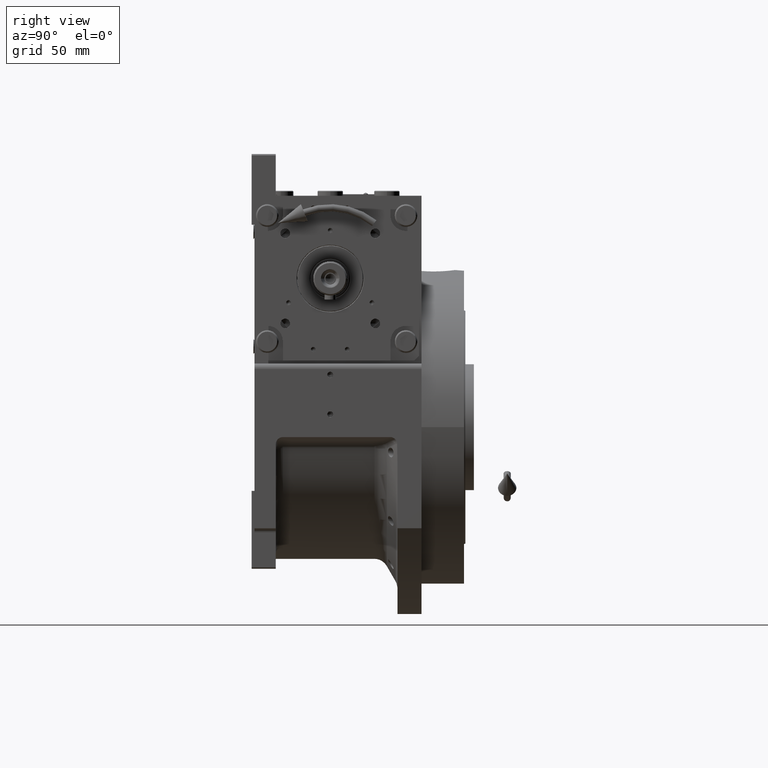
[diagram: clean part render]
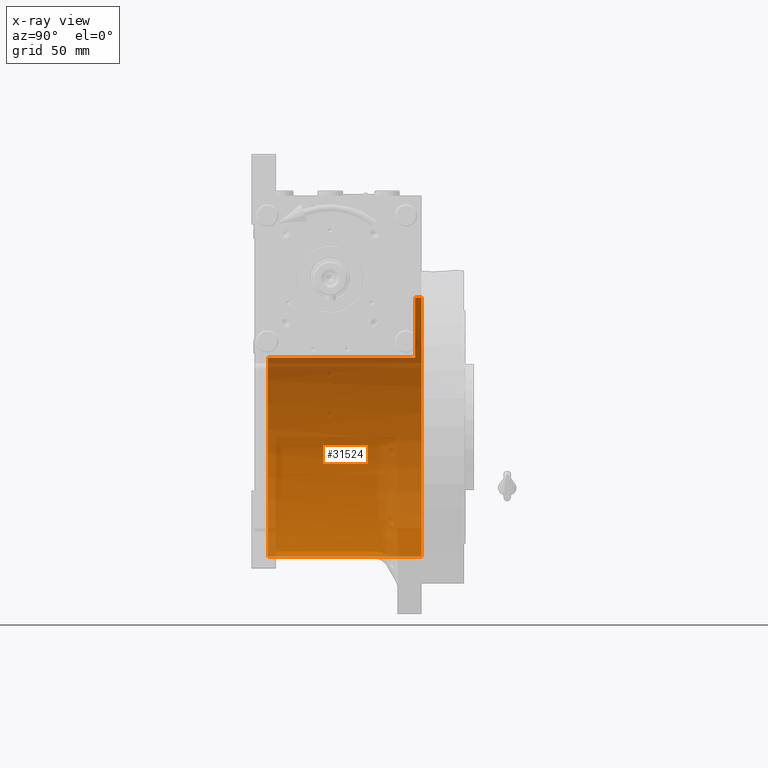
[diagram: x-ray — body ghosted, one internal face saturated and labeled with its STEP entity id]
A machine part, right view, then the same camera in x-ray: the body is ghosted and one INTERNAL B-rep face — a face not visible from any outside direction — is saturated and labeled: STEP entity #31524.
In plain terms, the highlighted cylindrical surface (partial cylindrical patch) has radius 91.5 mm, axis along (0, -1, 0).
Its self-contained STEP definition (entity closure, byte-faithful):
#271 = ORIENTED_EDGE ( 'NONE', *, *, #12407, .F. ) ;
#292 = DIRECTION ( 'NONE',  ( 0.000000000000000000, -1.000000000000000000, 0.000000000000000000 ) ) ;
#1716 = CARTESIAN_POINT ( 'NONE',  ( 0.000000000000000000, 64.50000000000000000, 0.000000000000000000 ) ) ;
#3368 = VECTOR ( 'NONE', #36680, 1000.000000000000000 ) ;
#3771 = VERTEX_POINT ( 'NONE', #60519 ) ;
#4141 = ORIENTED_EDGE ( 'NONE', *, *, #16725, .F. ) ;
#5579 = EDGE_LOOP ( 'NONE', ( #33754, #28616, #271, #32787, #4141, #35568 ) ) ;
#10593 = DIRECTION ( 'NONE',  ( 0.000000000000000000, 1.000000000000000000, 0.000000000000000000 ) ) ;
#11281 = CYLINDRICAL_SURFACE ( 'NONE', #17986, 91.50000000000000000 ) ;
#12050 = AXIS2_PLACEMENT_3D ( 'NONE', #49353, #65026, #29100 ) ;
#12407 = EDGE_CURVE ( 'NONE', #19535, #43215, #39945, .T. ) ;
#16725 = EDGE_CURVE ( 'NONE', #3771, #66391, #43805, .T. ) ;
#17523 = DIRECTION ( 'NONE',  ( 0.000000000000000000, 0.000000000000000000, -1.000000000000000000 ) ) ;
#17986 = AXIS2_PLACEMENT_3D ( 'NONE', #32893, #33587, #17523 ) ;
#19340 = CARTESIAN_POINT ( 'NONE',  ( -77.27386362800812947, 69.00000000000004263, 48.99999999999998579 ) ) ;
#19535 = VERTEX_POINT ( 'NONE', #20954 ) ;
#20880 = CARTESIAN_POINT ( 'NONE',  ( 1.120551821219827868E-14, 64.50000000000000000, 91.50000000000000000 ) ) ;
#20954 = CARTESIAN_POINT ( 'NONE',  ( -77.27386362800814368, 60.00000000000000000, 48.99999999999998579 ) ) ;
#23011 = DIRECTION ( 'NONE',  ( 0.000000000000000000, 0.000000000000000000, 1.000000000000000000 ) ) ;
#23570 = DIRECTION ( 'NONE',  ( -0.000000000000000000, 1.000000000000000000, -0.000000000000000000 ) ) ;
#25165 = LINE ( 'NONE', #31770, #3368 ) ;
#27522 = CARTESIAN_POINT ( 'NONE',  ( 1.120551821219827868E-14, 69.00000000000004263, 91.50000000000000000 ) ) ;
#27871 = CIRCLE ( 'NONE', #53512, 91.50000000000000000 ) ;
#28616 = ORIENTED_EDGE ( 'NONE', *, *, #68757, .T. ) ;
#29100 = DIRECTION ( 'NONE',  ( 1.776356839400250465E-15, 0.000000000000000000, -1.000000000000000000 ) ) ;
#29655 = EDGE_CURVE ( 'NONE', #66391, #19535, #40316, .T. ) ;
#30336 = EDGE_CURVE ( 'NONE', #40497, #50267, #27871, .T. ) ;
#31437 = VECTOR ( 'NONE', #292, 1000.000000000000000 ) ;
#31524 = ADVANCED_FACE ( 'NONE', ( #48612 ), #11281, .F. ) ;
#31770 = CARTESIAN_POINT ( 'NONE',  ( 0.000000000000000000, 69.00000000000004263, -91.50000000000000000 ) ) ;
#32787 = ORIENTED_EDGE ( 'NONE', *, *, #29655, .F. ) ;
#32893 = CARTESIAN_POINT ( 'NONE',  ( 0.000000000000000000, 69.00000000000004263, 0.000000000000000000 ) ) ;
#33587 = DIRECTION ( 'NONE',  ( 0.000000000000000000, -1.000000000000000000, 0.000000000000000000 ) ) ;
#33754 = ORIENTED_EDGE ( 'NONE', *, *, #30336, .F. ) ;
#35568 = ORIENTED_EDGE ( 'NONE', *, *, #64613, .F. ) ;
#36680 = DIRECTION ( 'NONE',  ( 0.000000000000000000, -1.000000000000000000, 0.000000000000000000 ) ) ;
#37102 = CARTESIAN_POINT ( 'NONE',  ( 0.000000000000000000, -44.00000000000000000, 0.000000000000000000 ) ) ;
#38704 = CARTESIAN_POINT ( 'NONE',  ( 1.120551821219827868E-14, 60.00000000000000000, 91.50000000000000000 ) ) ;
#39945 = CIRCLE ( 'NONE', #12050, 91.50000000000000000 ) ;
#40135 = CARTESIAN_POINT ( 'NONE',  ( -77.27386362800814368, -44.00000000000000000, 49.00000000000000000 ) ) ;
#40316 = LINE ( 'NONE', #19340, #57370 ) ;
#40487 = AXIS2_PLACEMENT_3D ( 'NONE', #37102, #10593, #62910 ) ;
#40497 = VERTEX_POINT ( 'NONE', #20880 ) ;
#43215 = VERTEX_POINT ( 'NONE', #38704 ) ;
#43805 = CIRCLE ( 'NONE', #40487, 91.50000000000000000 ) ;
#48612 = FACE_OUTER_BOUND ( 'NONE', #5579, .T. ) ;
#49353 = CARTESIAN_POINT ( 'NONE',  ( 0.000000000000000000, 60.00000000000000000, 0.000000000000000000 ) ) ;
#50267 = VERTEX_POINT ( 'NONE', #68845 ) ;
#53512 = AXIS2_PLACEMENT_3D ( 'NONE', #1716, #55103, #23011 ) ;
#55103 = DIRECTION ( 'NONE',  ( -0.000000000000000000, -1.000000000000000000, -0.000000000000000000 ) ) ;
#57370 = VECTOR ( 'NONE', #23570, 1000.000000000000000 ) ;
#60519 = CARTESIAN_POINT ( 'NONE',  ( 0.000000000000000000, -44.00000000000000000, -91.50000000000000000 ) ) ;
#62910 = DIRECTION ( 'NONE',  ( 0.000000000000000000, 0.000000000000000000, 1.000000000000000000 ) ) ;
#64613 = EDGE_CURVE ( 'NONE', #50267, #3771, #25165, .T. ) ;
#65026 = DIRECTION ( 'NONE',  ( 0.000000000000000000, 1.000000000000000000, 0.000000000000000000 ) ) ;
#65519 = LINE ( 'NONE', #27522, #31437 ) ;
#66391 = VERTEX_POINT ( 'NONE', #40135 ) ;
#68757 = EDGE_CURVE ( 'NONE', #40497, #43215, #65519, .T. ) ;
#68845 = CARTESIAN_POINT ( 'NONE',  ( 0.000000000000000000, 64.50000000000000000, -91.50000000000000000 ) ) ;